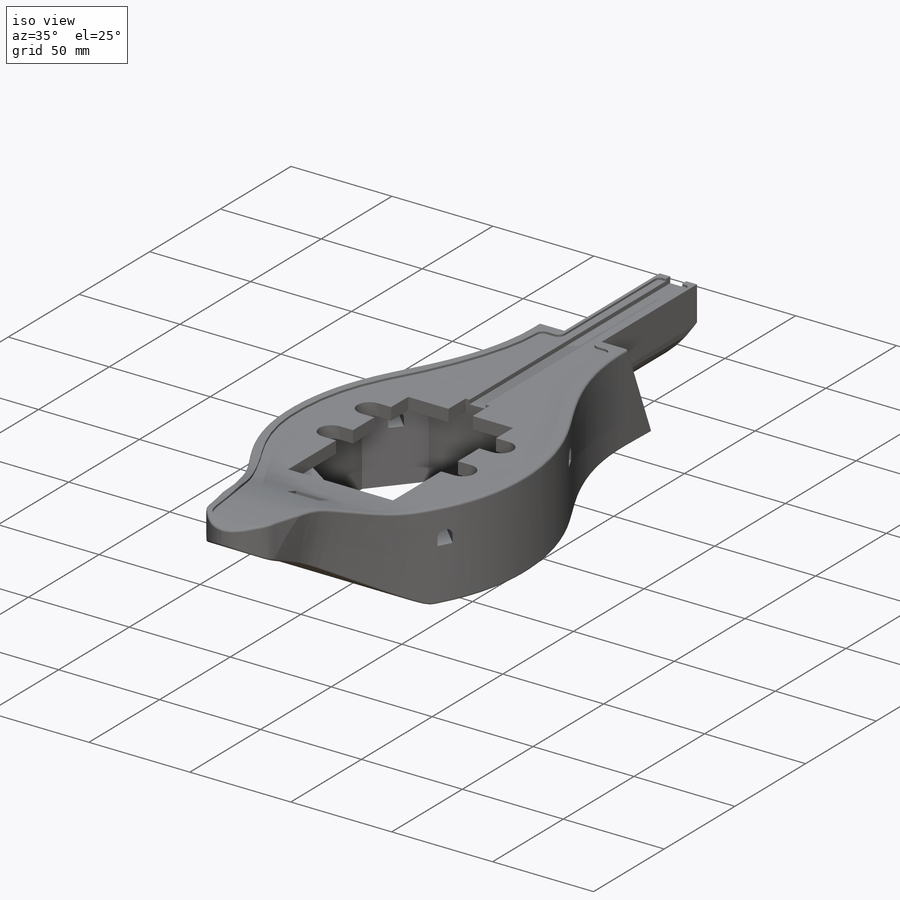
[diagram: iso view]
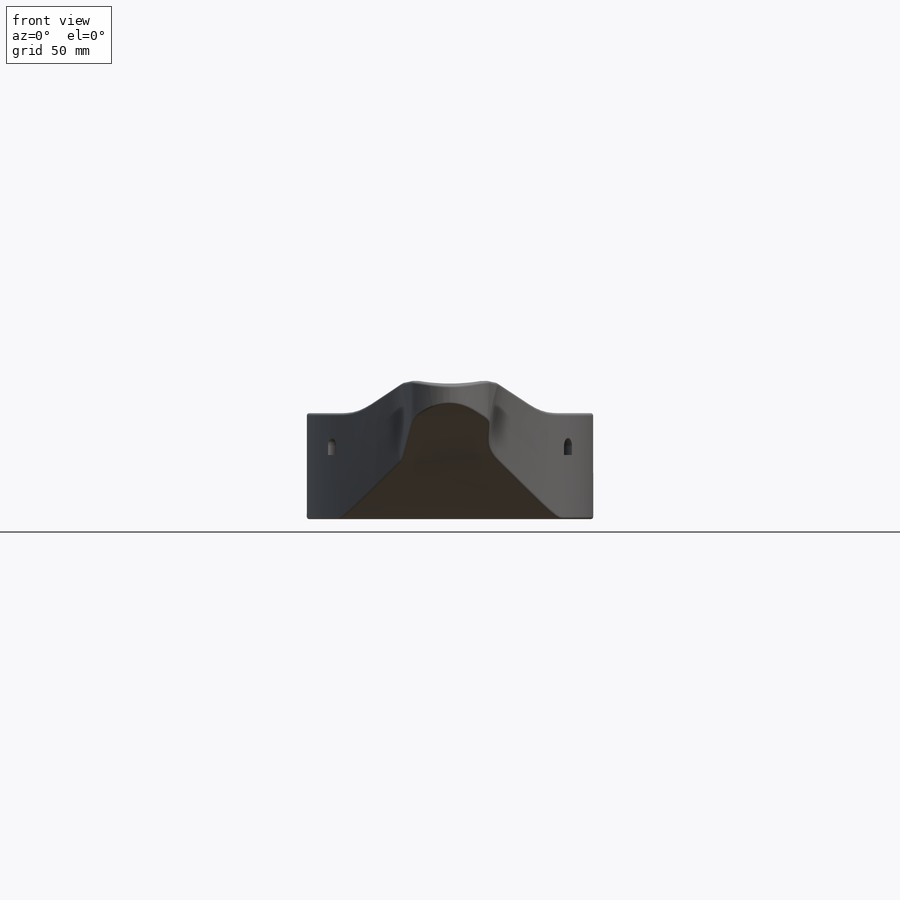
[diagram: front view]
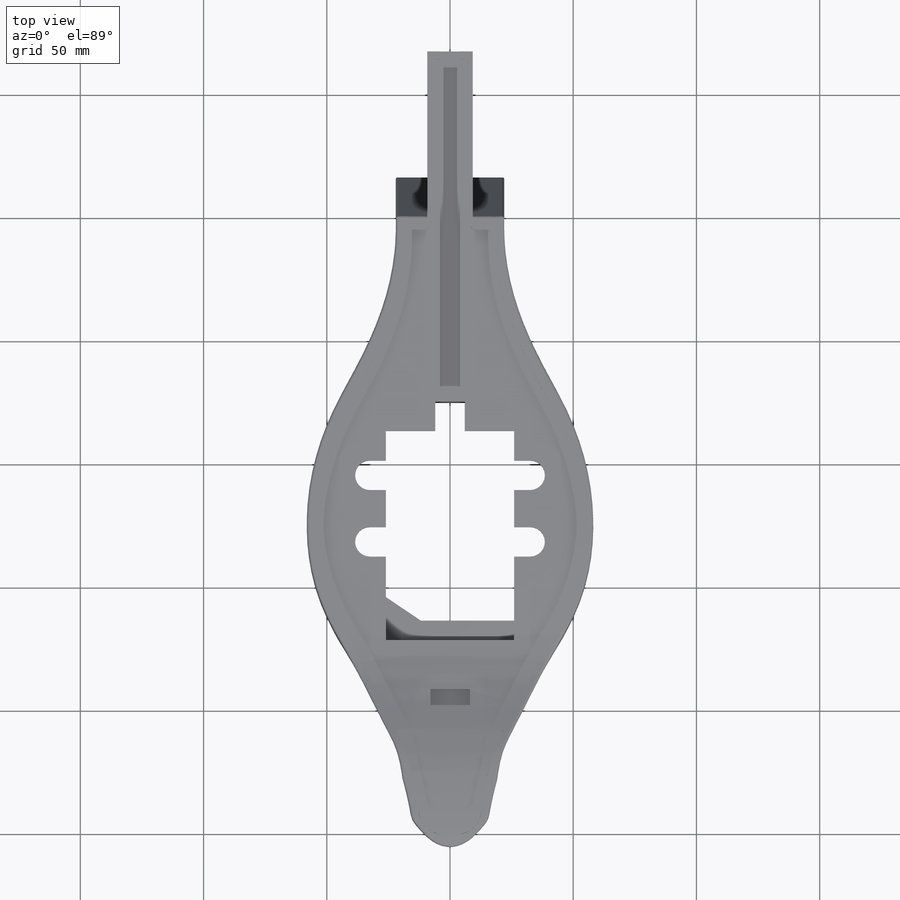
[diagram: top view]
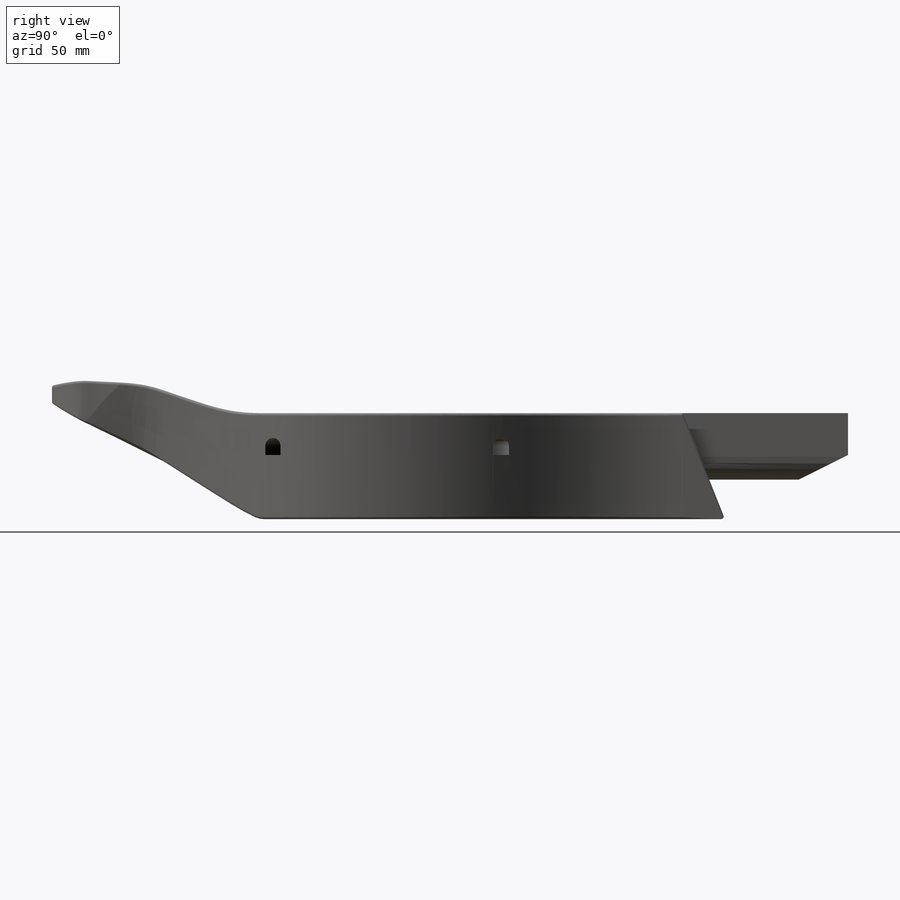
[diagram: right view]
SOLIDWORKS PART (.sldprt)
format: sldprt  version: not decoded by parser v0  size: 926,720 bytes
history: native  units: mm
features: sketch x28, plane x14, cut_extrude x9, extrude x4, fillet x2, material x1, mirror x1 (+8 scaffold rows collapsed)
feature tree (67):
  scaffold x8  (default folders/planes/origin — collapsed)
  material  "Matériau <non spécifié>"
  plane  "Plan de face"
  plane  "Plan de dessus"
  plane  "Plan de droite"
  sketch  "Esquisse1"  dims[D1=2.5mm]
  extrude  "Extrusion2"  Depth=43mm
  sketch  "Esquisse2"
  plane  "Plan1"  Offset=210mm
  sketch  "Esquisse3"  dims[c1.D1=43.0mm c1.D2=20.5mm c1.D3=41.0mm c1.D4=41.0mm c2.D3=10.5mm c2.D4=21.5mm c2.D1=29.0mm c2.D2=25.0mm c3.D3=20.5mm c3.D4=23.0mm]
  sketch  "Esquisse4"
  plane  "Plan2"  Offset=30mm
  sketch  "Esquisse5"  dims[D1=16.0mm D2=18.0mm D3=18.0mm D4=38.0mm]
  extrude  "Lissage2"  [1 undecoded]
  sketch  "Esquisse3<6>"
  plane  "Plan3"  Offset=18mm
  sketch  "Esquisse6"  dims[c1.D1=5.0mm c1.D2=~3.441877mm c2.D2=90.0deg c3.D2=4.0mm c3.D3=8.0mm]
  extrude  "Lissage3"  [1 undecoded]
  sketch  "Esquisse5<7>"
  sketch  "Esquisse8"
  cut_extrude  "Extrusion3"  Depth=46mm
  sketch  "Esquisse9"  dims[D1=18.5mm D2=9.25mm D3=17.75mm]
  extrude  "Extrusion4"  Depth=67mm
  sketch  "Esquisse10"  dims[D1=20.0mm D2=10.0mm]
  cut_extrude  "Extrusion5"  Depth=20mm
  sketch  "Esquisse11"  dims[c1.D1=85.0mm c1.D2=48.5mm c1.D3=92.0mm c1.D4=~21.183699mm c2.D4=130.0deg c2.D5=50.0mm c3.D5=130.0deg c3.D6=47.0mm c3.D7=47.0mm c3.D8=28.0mm c3.D9=~20.497475mm c3.D1=28.0mm c4.D9=24.25mm c4.D10=~8.008472mm c5.D10=45.0deg c5.D11=17.0mm c5.D12=8.5mm c5.D13=42.0mm]
  cut_extrude  "Extrusion6"  Depth=36mm
  sketch  "Esquisse12"  dims[c1.D5=6.0mm c1.D12=6.0mm c1.D6=6.0mm c1.D1=87.0mm c1.D2=84.0mm c1.D3=52.0mm c1.D4=26.0mm c2.D5=12.0mm c2.D6=12.0mm c2.D7=6.0mm c2.D2=85.0mm c2.D3=12.0mm c2.D4=26.0mm c3.D6=6.0mm c3.D8=12.0mm c3.D9=15.0mm c3.D10=3.0mm c3.D11=3.0mm c3.D13=3.0mm c3.D14=21.0mm c3.D15=12.0mm c3.D5=32.5mm c4.D9=27.0mm]
  cut_extrude  "Extrusion7"  [1 undecoded]
  plane  "Plan4"  Offset=118.5mm
  sketch  "Esquisse13"
  plane  "Plan5"
  sketch  "Esquisse14"  dims[D1=6.6mm D2=3.3mm D3=26.0mm D4=3.6mm]
  cut_extrude  "Extrusion8"  Depth=150mm
  mirror  "Symétrie1"
  sketch  "Esquisse15"  dims[c1.D3=3.0mm c1.D4=2.0mm c1.D5=2.0mm c1.D6=0.5mm c1.D1=5.0mm c1.D2=1.5mm c2.D3=~9.730835mm c3.D3=270.0deg c3.D7=4.0mm]
  cut_extrude  "Extrusion9"  Depth=1mm
  sketch  "Esquisse16"  dims[D1=8.0mm D2=4.0mm D3=2.0mm]
  cut_extrude  "Extrusion10"  [1 undecoded]
  sketch  "Esquisse17"  dims[D1=2.5mm]
  sketch  "Esquisse18"
  cut_extrude  "Extrusion11"  [1 undecoded]
  sketch  "Esquisse19"  dims[D1=1.0mm D2=1.0mm]
  plane  "Plan7"  Offset=14mm
  sketch  "Esquisse20"  dims[D1=~1.913476mm]
  sketch  "Esquisse21"
  plane  "Plan6"  Offset=12mm
  plane  "Plan8"  Offset=7.156711mm
  plane  "Plan9"  Offset=20mm
  sketch  "Esquisse22"  dims[D1=0.1mm D2=0.2mm D3=0.2mm]
  sketch  "Esquisse23"
  sketch  "Esquisse24"
  sketch  "Esquisse25"
  sketch  "Esquisse26"  dims[D1=210.0mm]
  plane  "Plan10"
  plane  "Plan11"  Offset=52mm
  sketch  "Esquisse27"  dims[D1=16.0mm D2=8.0mm D3=7.0mm D4=3.5mm]
  cut_extrude  "Extrusion12"  Depth=5mm
  fillet  "Congé3"  Radius=1mm
  fillet  "Congé5"  Radius=1mm
decode coverage: 27 of 44 modeling features carry decoded parameters
note: ~ marks probable driven/reference dimensions
note: 5 parameter values undecoded
summary: no parameter record found for 5 features
note: suppression state not decoded; provenance and decode notes live in map.json
